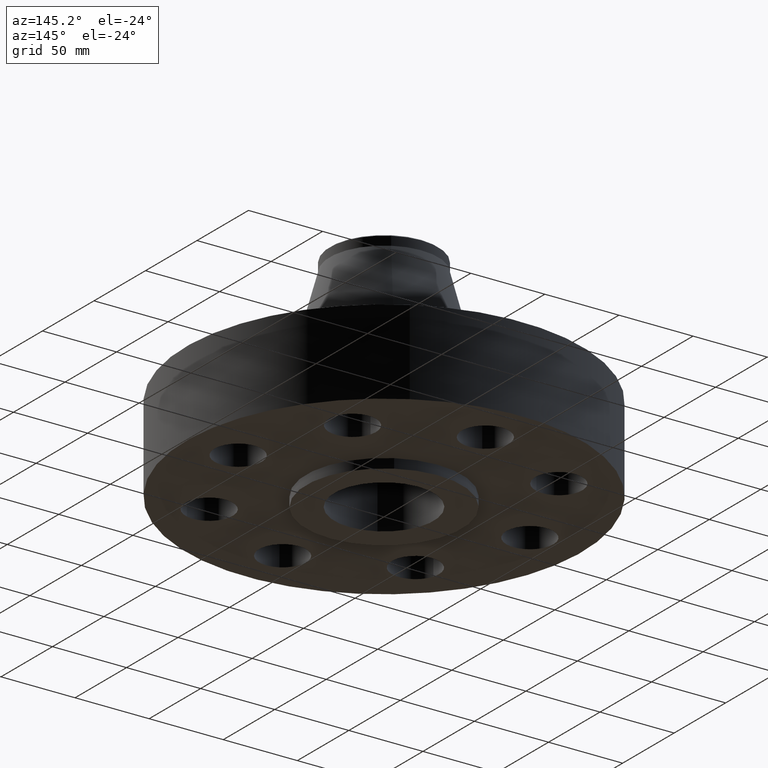
[diagram: clean part render]
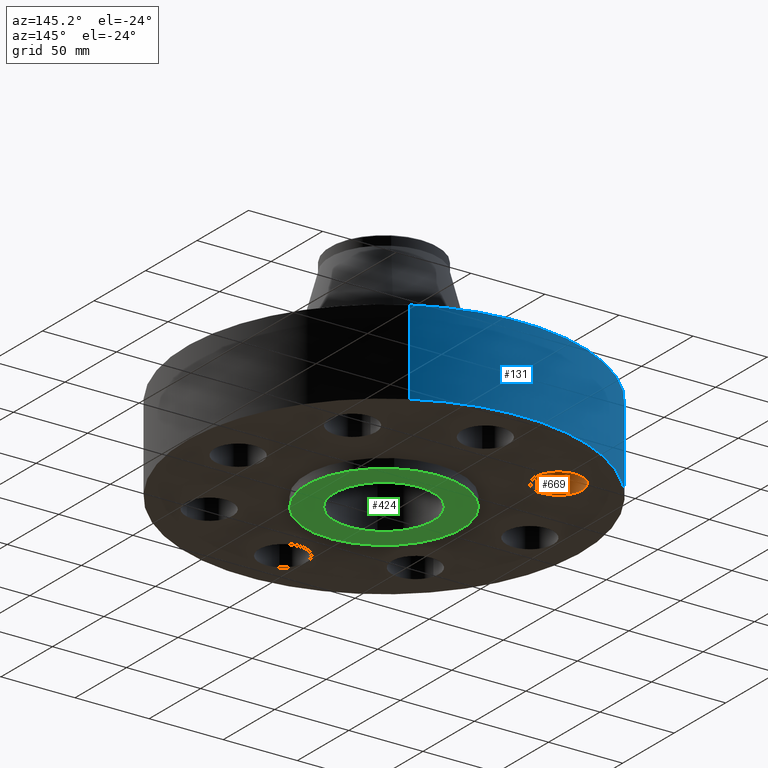
[diagram: same view with three faces highlighted in distinct colors, each labeled with its STEP entity id]
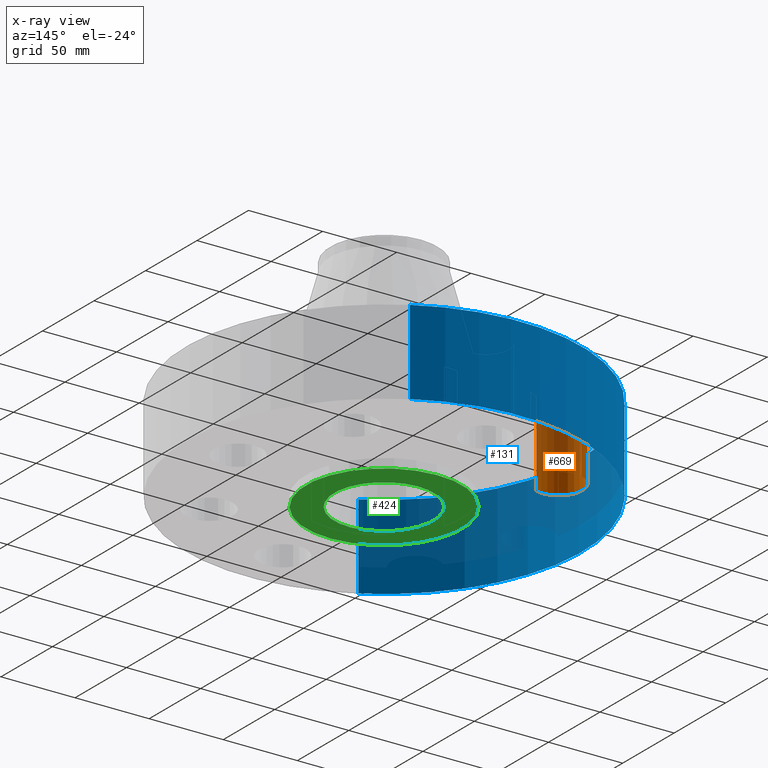
[diagram: x-ray of the same camera — body ghosted, the three highlighted faces saturated]
A machine part, auxiliary view with three faces highlighted in distinct colors.
The next image is the same camera in x-ray (body ghosted, the three faces saturated) — at least one of them is partly hidden behind the body in this view.
Their STEP definitions:

[orange] entity #669 — the highlighted cylindrical surface (edge-blend (fillet) strip) has radius 15.875 mm, axis along (0, 0, -1).
#586=AXIS2_PLACEMENT_3D('Circle Axis2P3D',#584,#585,$) ;
#642=AXIS2_PLACEMENT_3D('Cylinder Axis2P3D',#639,#640,#641) ;
#660=AXIS2_PLACEMENT_3D('Circle Axis2P3D',#658,#659,$) ;
#584=CARTESIAN_POINT('Axis2P3D Location',(-2.74003877711,2.74003877711,0.)) ;
#588=CARTESIAN_POINT('Vertex',(-2.56407657014,2.14032025837,0.)) ;
#590=CARTESIAN_POINT('Vertex',(-2.91600098407,3.33975729585,-2.79741234551E-016)) ;
#639=CARTESIAN_POINT('Axis2P3D Location',(-2.74003877711,2.74003877711,2.24606299213)) ;
#644=CARTESIAN_POINT('Line Origine',(-2.56407657014,2.14032025837,1.125)) ;
#648=CARTESIAN_POINT('Vertex',(-2.56407657014,2.14032025837,2.25000000001)) ;
#651=CARTESIAN_POINT('Line Origine',(-2.91600098407,3.33975729585,1.125)) ;
#655=CARTESIAN_POINT('Vertex',(-2.91600098407,3.33975729585,2.25000000001)) ;
#658=CARTESIAN_POINT('Axis2P3D Location',(-2.74003877711,2.74003877711,2.25000000001)) ;
#585=DIRECTION('Axis2P3D Direction',(0.,0.,-0.0393700787402)) ;
#640=DIRECTION('Axis2P3D Direction',(0.,0.,-0.0393700787402)) ;
#641=DIRECTION('Axis2P3D XDirection',(-0.0110842335096,0.0377775444876,0.)) ;
#645=DIRECTION('Vector Direction',(0.,0.,-0.0393700787402)) ;
#652=DIRECTION('Vector Direction',(0.,0.,-0.0393700787402)) ;
#659=DIRECTION('Axis2P3D Direction',(0.,0.,-0.0393700787402)) ;
#646=VECTOR('Line Direction',#645,0.0393700787402) ;
#653=VECTOR('Line Direction',#652,0.0393700787402) ;
#664=ORIENTED_EDGE('',*,*,#650,.F.) ;
#665=ORIENTED_EDGE('',*,*,#592,.T.) ;
#666=ORIENTED_EDGE('',*,*,#657,.T.) ;
#667=ORIENTED_EDGE('',*,*,#662,.F.) ;
#669=ADVANCED_FACE('PartBody',(#668),#643,.F.) ;
#587=CIRCLE('generated circle',#586,0.625000000003) ;
#661=CIRCLE('generated circle',#660,0.625000000003) ;
#643=CYLINDRICAL_SURFACE('generated cylinder',#642,0.625000000003) ;
#592=EDGE_CURVE('',#589,#591,#587,.T.) ;
#650=EDGE_CURVE('',#589,#649,#647,.F.) ;
#657=EDGE_CURVE('',#591,#656,#654,.F.) ;
#662=EDGE_CURVE('',#649,#656,#661,.T.) ;
#663=EDGE_LOOP('',(#664,#665,#666,#667)) ;
#668=FACE_OUTER_BOUND('',#663,.T.) ;
#647=LINE('Line',#644,#646) ;
#654=LINE('Line',#651,#653) ;
#589=VERTEX_POINT('',#588) ;
#591=VERTEX_POINT('',#590) ;
#649=VERTEX_POINT('',#648) ;
#656=VERTEX_POINT('',#655) ;

[blue] entity #131 — the highlighted cylindrical surface (partial cylindrical patch) has radius 133.35 mm, axis along (0, 0, -1).
#95=AXIS2_PLACEMENT_3D('Cylinder Axis2P3D',#92,#93,#94) ;
#99=AXIS2_PLACEMENT_3D('Circle Axis2P3D',#97,#98,$) ;
#115=AXIS2_PLACEMENT_3D('Circle Axis2P3D',#113,#114,$) ;
#92=CARTESIAN_POINT('Axis2P3D Location',(0.,0.,2.68500000001)) ;
#97=CARTESIAN_POINT('Axis2P3D Location',(0.,0.,5.59482469102E-016)) ;
#101=CARTESIAN_POINT('Vertex',(-2.51698407768,-4.60730844994,5.59482469102E-016)) ;
#103=CARTESIAN_POINT('Vertex',(2.51698407768,4.60730844994,5.59482469102E-016)) ;
#106=CARTESIAN_POINT('Line Origine',(-2.51698407768,-4.60730844994,1.125)) ;
#110=CARTESIAN_POINT('Vertex',(-2.51698407768,-4.60730844994,2.25000000001)) ;
#113=CARTESIAN_POINT('Axis2P3D Location',(0.,0.,2.25000000001)) ;
#117=CARTESIAN_POINT('Vertex',(2.51698407768,4.60730844994,2.25000000001)) ;
#120=CARTESIAN_POINT('Line Origine',(2.51698407768,4.60730844994,1.125)) ;
#93=DIRECTION('Axis2P3D Direction',(0.,0.,-0.0393700787402)) ;
#94=DIRECTION('Axis2P3D XDirection',(0.0188750212049,0.0345504945626,0.)) ;
#98=DIRECTION('Axis2P3D Direction',(0.,0.,-0.0393700787402)) ;
#107=DIRECTION('Vector Direction',(0.,0.,-0.0393700787402)) ;
#114=DIRECTION('Axis2P3D Direction',(0.,0.,-0.0393700787402)) ;
#121=DIRECTION('Vector Direction',(0.,0.,-0.0393700787402)) ;
#108=VECTOR('Line Direction',#107,0.0393700787402) ;
#122=VECTOR('Line Direction',#121,0.0393700787402) ;
#126=ORIENTED_EDGE('',*,*,#105,.F.) ;
#127=ORIENTED_EDGE('',*,*,#112,.T.) ;
#128=ORIENTED_EDGE('',*,*,#119,.T.) ;
#129=ORIENTED_EDGE('',*,*,#124,.F.) ;
#131=ADVANCED_FACE('PartBody',(#130),#96,.T.) ;
#100=CIRCLE('generated circle',#99,5.25000000002) ;
#116=CIRCLE('generated circle',#115,5.25000000002) ;
#96=CYLINDRICAL_SURFACE('generated cylinder',#95,5.25000000002) ;
#105=EDGE_CURVE('',#102,#104,#100,.T.) ;
#112=EDGE_CURVE('',#102,#111,#109,.F.) ;
#119=EDGE_CURVE('',#111,#118,#116,.T.) ;
#124=EDGE_CURVE('',#104,#118,#123,.F.) ;
#125=EDGE_LOOP('',(#126,#127,#128,#129)) ;
#130=FACE_OUTER_BOUND('',#125,.T.) ;
#109=LINE('Line',#106,#108) ;
#123=LINE('Line',#120,#122) ;
#102=VERTEX_POINT('',#101) ;
#104=VERTEX_POINT('',#103) ;
#111=VERTEX_POINT('',#110) ;
#118=VERTEX_POINT('',#117) ;

[green] entity #424 — the highlighted planar face has unit normal (0, 0, -1).
#363=AXIS2_PLACEMENT_3D('Circle Axis2P3D',#361,#362,$) ;
#387=AXIS2_PLACEMENT_3D('Circle Axis2P3D',#385,#386,$) ;
#400=AXIS2_PLACEMENT_3D('Plane Axis2P3D',#397,#398,#399) ;
#404=AXIS2_PLACEMENT_3D('Circle Axis2P3D',#402,#403,$) ;
#413=AXIS2_PLACEMENT_3D('Circle Axis2P3D',#411,#412,$) ;
#358=CARTESIAN_POINT('Vertex',(0.631643147114,1.1562150253,-0.250000000001)) ;
#361=CARTESIAN_POINT('Axis2P3D Location',(0.,0.,-0.250000000001)) ;
#365=CARTESIAN_POINT('Vertex',(-0.631643147114,-1.1562150253,-0.250000000001)) ;
#385=CARTESIAN_POINT('Axis2P3D Location',(0.,0.,-0.250000000001)) ;
#397=CARTESIAN_POINT('Axis2P3D Location',(0.,1.31750000001,-0.250000000001)) ;
#402=CARTESIAN_POINT('Axis2P3D Location',(0.,0.,-0.250000000001)) ;
#406=CARTESIAN_POINT('Vertex',(-0.990013737222,-1.81220799031,-0.250000000001)) ;
#408=CARTESIAN_POINT('Vertex',(0.990013737222,1.81220799031,-0.250000000001)) ;
#411=CARTESIAN_POINT('Axis2P3D Location',(0.,0.,-0.250000000001)) ;
#362=DIRECTION('Axis2P3D Direction',(0.,0.,-0.0393700787402)) ;
#386=DIRECTION('Axis2P3D Direction',(0.,0.,-0.0393700787402)) ;
#398=DIRECTION('Axis2P3D Direction',(0.,0.,-0.0393700787402)) ;
#399=DIRECTION('Axis2P3D XDirection',(0.0393700787402,0.,0.)) ;
#403=DIRECTION('Axis2P3D Direction',(0.,0.,-0.0393700787402)) ;
#412=DIRECTION('Axis2P3D Direction',(0.,0.,-0.0393700787402)) ;
#417=ORIENTED_EDGE('',*,*,#410,.T.) ;
#418=ORIENTED_EDGE('',*,*,#415,.T.) ;
#421=ORIENTED_EDGE('',*,*,#367,.F.) ;
#422=ORIENTED_EDGE('',*,*,#389,.F.) ;
#423=FACE_BOUND('',#420,.T.) ;
#424=ADVANCED_FACE('PartBody',(#419,#423),#401,.T.) ;
#364=CIRCLE('generated circle',#363,1.31750000001) ;
#388=CIRCLE('generated circle',#387,1.31750000001) ;
#405=CIRCLE('generated circle',#404,2.06500000001) ;
#414=CIRCLE('generated circle',#413,2.06500000001) ;
#367=EDGE_CURVE('',#359,#366,#364,.T.) ;
#389=EDGE_CURVE('',#366,#359,#388,.T.) ;
#410=EDGE_CURVE('',#407,#409,#405,.T.) ;
#415=EDGE_CURVE('',#409,#407,#414,.T.) ;
#416=EDGE_LOOP('',(#417,#418)) ;
#420=EDGE_LOOP('',(#421,#422)) ;
#419=FACE_OUTER_BOUND('',#416,.T.) ;
#401=PLANE('',#400) ;
#359=VERTEX_POINT('',#358) ;
#366=VERTEX_POINT('',#365) ;
#407=VERTEX_POINT('',#406) ;
#409=VERTEX_POINT('',#408) ;